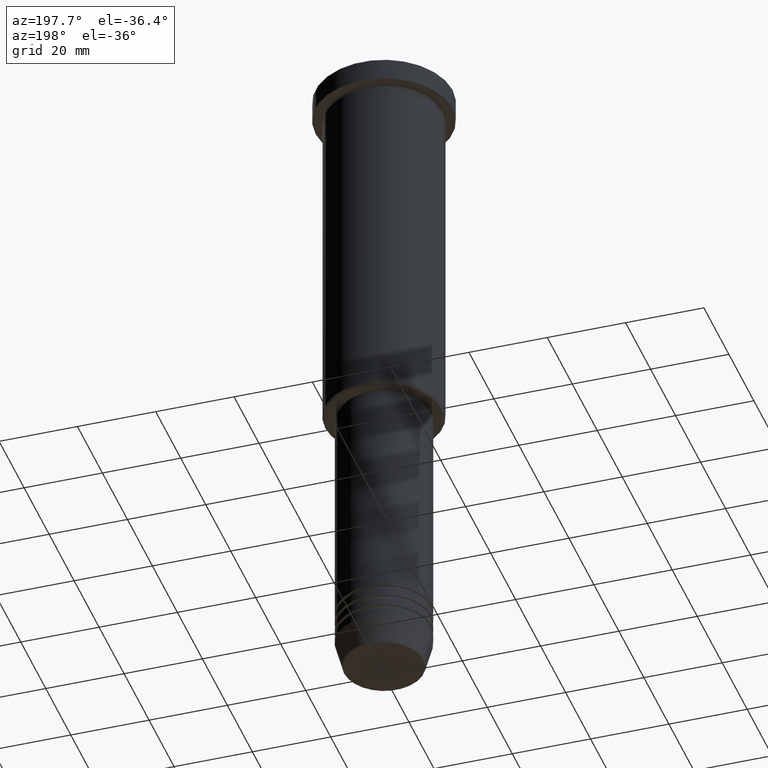
[diagram: clean part render]
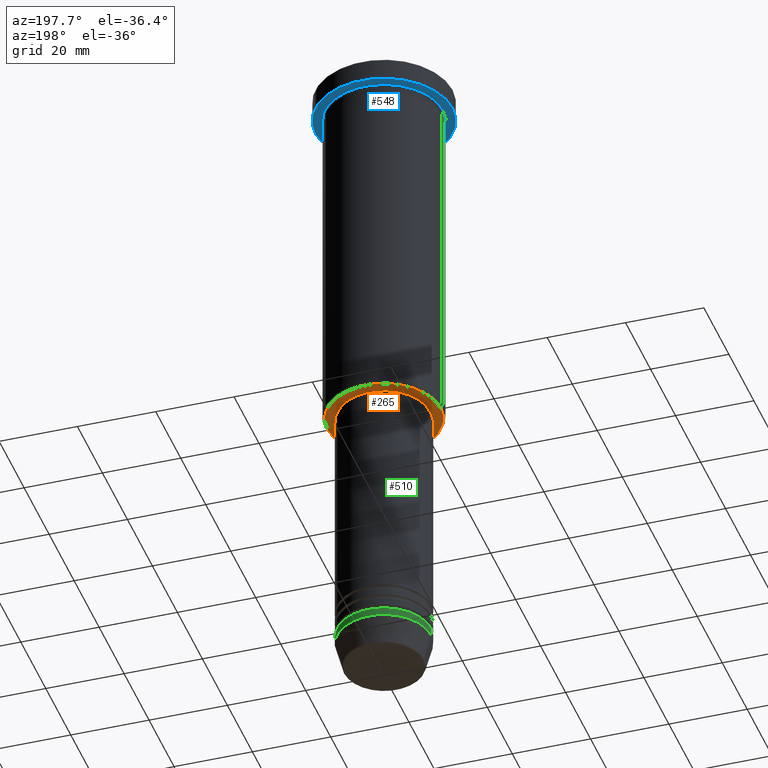
[diagram: same view with three faces highlighted in distinct colors, each labeled with its STEP entity id]
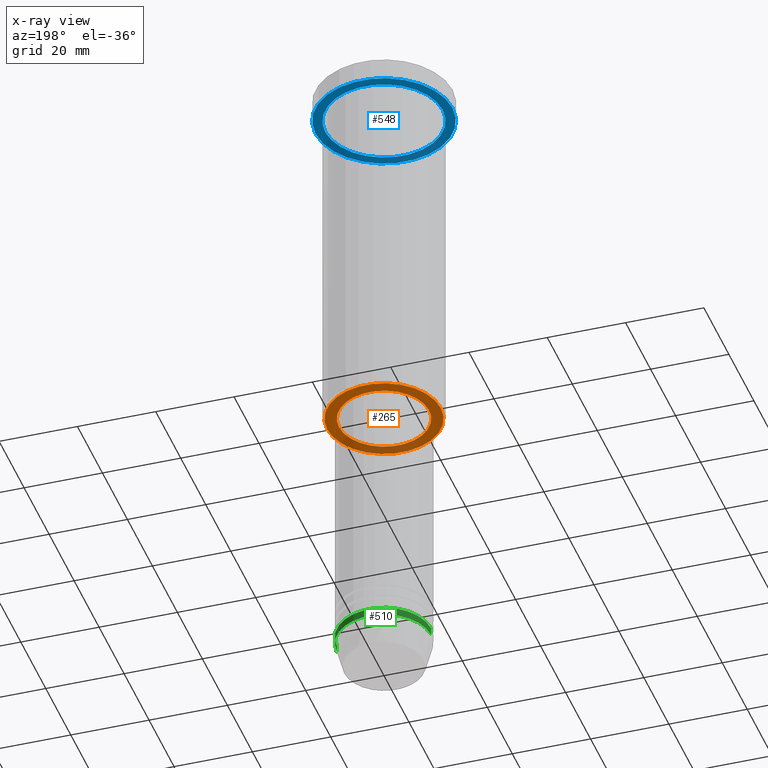
[diagram: x-ray of the same camera — body ghosted, the three highlighted faces saturated]
A machine part, auxiliary view with three faces highlighted in distinct colors.
The next image is the same camera in x-ray (body ghosted, the three faces saturated) — at least one of them is partly hidden behind the body in this view.
Their STEP definitions:

[orange] entity #265 — the highlighted planar face has unit normal (0, 0, -1).
#3 = DIRECTION ( 'NONE',  ( 1.000000000000000000, 0.000000000000000000, 0.000000000000000000 ) ) ;
#74 = EDGE_LOOP ( 'NONE', ( #803, #277 ) ) ;
#75 = DIRECTION ( 'NONE',  ( -1.000000000000000000, 0.000000000000000000, 0.000000000000000000 ) ) ;
#97 = CIRCLE ( 'NONE', #749, 14.50000000000001066 ) ;
#112 = DIRECTION ( 'NONE',  ( 1.000000000000000000, 0.000000000000000000, 0.000000000000000000 ) ) ;
#113 = CARTESIAN_POINT ( 'NONE',  ( 0.000000000000000000, 15.00000000000000000, -96.00000000000000000 ) ) ;
#129 = CARTESIAN_POINT ( 'NONE',  ( 14.50000000000001066, 0.000000000000000000, -96.00000000000000000 ) ) ;
#140 = DIRECTION ( 'NONE',  ( 0.000000000000000000, 0.000000000000000000, -1.000000000000000000 ) ) ;
#173 = AXIS2_PLACEMENT_3D ( 'NONE', #1008, #978, #3 ) ;
#175 = AXIS2_PLACEMENT_3D ( 'NONE', #1103, #629, #112 ) ;
#196 = CARTESIAN_POINT ( 'NONE',  ( -14.50000000000001066, 1.806354028742346591E-15, -96.00000000000000000 ) ) ;
#216 = FACE_OUTER_BOUND ( 'NONE', #74, .T. ) ;
#265 = ADVANCED_FACE ( 'NONE', ( #216, #1107 ), #476, .T. ) ;
#277 = ORIENTED_EDGE ( 'NONE', *, *, #1087, .T. ) ;
#303 = DIRECTION ( 'NONE',  ( -1.000000000000000000, 0.000000000000000000, -0.000000000000000000 ) ) ;
#317 = EDGE_CURVE ( 'NONE', #1032, #544, #883, .T. ) ;
#387 = DIRECTION ( 'NONE',  ( 0.000000000000000000, 0.000000000000000000, -1.000000000000000000 ) ) ;
#404 = EDGE_CURVE ( 'NONE', #544, #1032, #861, .T. ) ;
#434 = VERTEX_POINT ( 'NONE', #196 ) ;
#476 = PLANE ( 'NONE',  #540 ) ;
#507 = CARTESIAN_POINT ( 'NONE',  ( 0.000000000000000000, 0.000000000000000000, -96.00000000000000000 ) ) ;
#540 = AXIS2_PLACEMENT_3D ( 'NONE', #113, #387, #303 ) ;
#544 = VERTEX_POINT ( 'NONE', #990 ) ;
#573 = EDGE_CURVE ( 'NONE', #596, #434, #97, .T. ) ;
#581 = CARTESIAN_POINT ( 'NONE',  ( 0.000000000000000000, 0.000000000000000000, -96.00000000000000000 ) ) ;
#596 = VERTEX_POINT ( 'NONE', #129 ) ;
#608 = DIRECTION ( 'NONE',  ( 0.000000000000000000, 0.000000000000000000, -1.000000000000000000 ) ) ;
#629 = DIRECTION ( 'NONE',  ( -0.000000000000000000, -0.000000000000000000, 1.000000000000000000 ) ) ;
#649 = CARTESIAN_POINT ( 'NONE',  ( 11.50000000000000000, 0.000000000000000000, -96.00000000000000000 ) ) ;
#662 = DIRECTION ( 'NONE',  ( -1.000000000000000000, 0.000000000000000000, 0.000000000000000000 ) ) ;
#728 = ORIENTED_EDGE ( 'NONE', *, *, #317, .T. ) ;
#749 = AXIS2_PLACEMENT_3D ( 'NONE', #507, #608, #75 ) ;
#803 = ORIENTED_EDGE ( 'NONE', *, *, #573, .T. ) ;
#848 = AXIS2_PLACEMENT_3D ( 'NONE', #581, #140, #662 ) ;
#861 = CIRCLE ( 'NONE', #175, 11.50000000000000000 ) ;
#883 = CIRCLE ( 'NONE', #173, 11.50000000000000000 ) ;
#903 = EDGE_LOOP ( 'NONE', ( #728, #1154 ) ) ;
#978 = DIRECTION ( 'NONE',  ( -0.000000000000000000, -0.000000000000000000, 1.000000000000000000 ) ) ;
#990 = CARTESIAN_POINT ( 'NONE',  ( -11.50000000000000000, 1.408343819019456176E-15, -96.00000000000000000 ) ) ;
#1008 = CARTESIAN_POINT ( 'NONE',  ( 0.000000000000000000, 0.000000000000000000, -96.00000000000000000 ) ) ;
#1032 = VERTEX_POINT ( 'NONE', #649 ) ;
#1066 = CIRCLE ( 'NONE', #848, 14.50000000000001066 ) ;
#1087 = EDGE_CURVE ( 'NONE', #434, #596, #1066, .T. ) ;
#1103 = CARTESIAN_POINT ( 'NONE',  ( 0.000000000000000000, 0.000000000000000000, -96.00000000000000000 ) ) ;
#1107 = FACE_BOUND ( 'NONE', #903, .T. ) ;
#1154 = ORIENTED_EDGE ( 'NONE', *, *, #404, .T. ) ;

[blue] entity #548 — the highlighted planar face has unit normal (0, 0, -1).
#60 = CARTESIAN_POINT ( 'NONE',  ( 0.000000000000000000, 17.50000000000000000, -5.999999999999995559 ) ) ;
#65 = DIRECTION ( 'NONE',  ( -0.000000000000000000, -0.000000000000000000, 1.000000000000000000 ) ) ;
#68 = FACE_BOUND ( 'NONE', #526, .T. ) ;
#73 = CARTESIAN_POINT ( 'NONE',  ( -17.50000000000000000, 2.143131898507868248E-15, -5.999999999999995559 ) ) ;
#136 = CIRCLE ( 'NONE', #292, 15.00000000000000000 ) ;
#163 = EDGE_LOOP ( 'NONE', ( #816, #349 ) ) ;
#166 = CARTESIAN_POINT ( 'NONE',  ( -15.00000000000000000, 0.000000000000000000, -5.999999999999994671 ) ) ;
#181 = DIRECTION ( 'NONE',  ( -1.000000000000000000, 0.000000000000000000, 0.000000000000000000 ) ) ;
#247 = CIRCLE ( 'NONE', #1062, 15.00000000000000000 ) ;
#255 = CARTESIAN_POINT ( 'NONE',  ( 17.50000000000000000, 0.000000000000000000, -5.999999999999995559 ) ) ;
#264 = FACE_OUTER_BOUND ( 'NONE', #163, .T. ) ;
#292 = AXIS2_PLACEMENT_3D ( 'NONE', #1005, #448, #181 ) ;
#320 = AXIS2_PLACEMENT_3D ( 'NONE', #811, #994, #538 ) ;
#341 = ORIENTED_EDGE ( 'NONE', *, *, #579, .T. ) ;
#349 = ORIENTED_EDGE ( 'NONE', *, *, #709, .F. ) ;
#363 = CIRCLE ( 'NONE', #320, 17.50000000000000000 ) ;
#399 = EDGE_CURVE ( 'NONE', #687, #562, #363, .T. ) ;
#421 = DIRECTION ( 'NONE',  ( -1.000000000000000000, 0.000000000000000000, -0.000000000000000000 ) ) ;
#435 = CARTESIAN_POINT ( 'NONE',  ( 0.000000000000000000, 0.000000000000000000, -5.999999999999995559 ) ) ;
#448 = DIRECTION ( 'NONE',  ( -0.000000000000000000, -0.000000000000000000, 1.000000000000000000 ) ) ;
#505 = PLANE ( 'NONE',  #806 ) ;
#526 = EDGE_LOOP ( 'NONE', ( #917, #341 ) ) ;
#538 = DIRECTION ( 'NONE',  ( 1.000000000000000000, 0.000000000000000000, 0.000000000000000000 ) ) ;
#548 = ADVANCED_FACE ( 'NONE', ( #68, #264 ), #505, .T. ) ;
#562 = VERTEX_POINT ( 'NONE', #73 ) ;
#579 = EDGE_CURVE ( 'NONE', #812, #762, #247, .T. ) ;
#594 = DIRECTION ( 'NONE',  ( 0.000000000000000000, 0.000000000000000000, -1.000000000000000000 ) ) ;
#687 = VERTEX_POINT ( 'NONE', #255 ) ;
#701 = CARTESIAN_POINT ( 'NONE',  ( 0.000000000000000000, 0.000000000000000000, -5.999999999999995559 ) ) ;
#709 = EDGE_CURVE ( 'NONE', #562, #687, #789, .T. ) ;
#762 = VERTEX_POINT ( 'NONE', #166 ) ;
#789 = CIRCLE ( 'NONE', #1025, 17.50000000000000000 ) ;
#806 = AXIS2_PLACEMENT_3D ( 'NONE', #60, #594, #421 ) ;
#811 = CARTESIAN_POINT ( 'NONE',  ( 0.000000000000000000, 0.000000000000000000, -5.999999999999995559 ) ) ;
#812 = VERTEX_POINT ( 'NONE', #1099 ) ;
#813 = DIRECTION ( 'NONE',  ( -1.000000000000000000, 0.000000000000000000, 0.000000000000000000 ) ) ;
#816 = ORIENTED_EDGE ( 'NONE', *, *, #399, .F. ) ;
#821 = EDGE_CURVE ( 'NONE', #762, #812, #136, .T. ) ;
#906 = DIRECTION ( 'NONE',  ( -0.000000000000000000, -0.000000000000000000, 1.000000000000000000 ) ) ;
#917 = ORIENTED_EDGE ( 'NONE', *, *, #821, .T. ) ;
#994 = DIRECTION ( 'NONE',  ( -0.000000000000000000, -0.000000000000000000, 1.000000000000000000 ) ) ;
#1005 = CARTESIAN_POINT ( 'NONE',  ( 0.000000000000000000, 0.000000000000000000, -5.999999999999995559 ) ) ;
#1025 = AXIS2_PLACEMENT_3D ( 'NONE', #701, #65, #1165 ) ;
#1062 = AXIS2_PLACEMENT_3D ( 'NONE', #435, #906, #813 ) ;
#1099 = CARTESIAN_POINT ( 'NONE',  ( 15.00000000000000000, 1.836970198721029589E-15, -5.999999999999994671 ) ) ;
#1165 = DIRECTION ( 'NONE',  ( 1.000000000000000000, 0.000000000000000000, 0.000000000000000000 ) ) ;

[green] entity #510 — the highlighted cylindrical surface (partial cylindrical patch) has radius 12 mm, axis along (-0, -0, 1).
#11 = EDGE_CURVE ( 'NONE', #684, #85, #685, .T. ) ;
#42 = LINE ( 'NONE', #141, #563 ) ;
#61 = DIRECTION ( 'NONE',  ( -0.000000000000000000, -0.000000000000000000, 1.000000000000000000 ) ) ;
#85 = VERTEX_POINT ( 'NONE', #779 ) ;
#94 = CARTESIAN_POINT ( 'NONE',  ( 12.00000000000000000, 0.000000000000000000, 0.000000000000000000 ) ) ;
#110 = ORIENTED_EDGE ( 'NONE', *, *, #479, .T. ) ;
#125 = DIRECTION ( 'NONE',  ( -0.000000000000000000, -0.000000000000000000, 1.000000000000000000 ) ) ;
#141 = CARTESIAN_POINT ( 'NONE',  ( -12.00000000000000000, 1.469576158976823947E-15, 0.000000000000000000 ) ) ;
#195 = AXIS2_PLACEMENT_3D ( 'NONE', #327, #61, #584 ) ;
#211 = VERTEX_POINT ( 'NONE', #323 ) ;
#237 = ORIENTED_EDGE ( 'NONE', *, *, #804, .F. ) ;
#242 = CARTESIAN_POINT ( 'NONE',  ( -12.00000000000000000, 1.469576158976823947E-15, -162.0000000000000000 ) ) ;
#315 = CYLINDRICAL_SURFACE ( 'NONE', #195, 12.00000000000000000 ) ;
#323 = CARTESIAN_POINT ( 'NONE',  ( 12.00000000000000000, 0.000000000000000000, -162.0000000000000000 ) ) ;
#327 = CARTESIAN_POINT ( 'NONE',  ( 0.000000000000000000, 0.000000000000000000, 0.000000000000000000 ) ) ;
#380 = CIRCLE ( 'NONE', #1040, 12.00000000000000000 ) ;
#479 = EDGE_CURVE ( 'NONE', #85, #696, #42, .T. ) ;
#494 = DIRECTION ( 'NONE',  ( 1.000000000000000000, 0.000000000000000000, 0.000000000000000000 ) ) ;
#498 = VECTOR ( 'NONE', #1109, 1000.000000000000000 ) ;
#510 = ADVANCED_FACE ( 'NONE', ( #935 ), #315, .T. ) ;
#563 = VECTOR ( 'NONE', #656, 1000.000000000000000 ) ;
#584 = DIRECTION ( 'NONE',  ( 1.000000000000000000, 0.000000000000000000, 0.000000000000000000 ) ) ;
#642 = EDGE_CURVE ( 'NONE', #211, #696, #380, .T. ) ;
#656 = DIRECTION ( 'NONE',  ( -0.000000000000000000, -0.000000000000000000, 1.000000000000000000 ) ) ;
#684 = VERTEX_POINT ( 'NONE', #1070 ) ;
#685 = CIRCLE ( 'NONE', #844, 12.00000000000000000 ) ;
#696 = VERTEX_POINT ( 'NONE', #242 ) ;
#721 = CARTESIAN_POINT ( 'NONE',  ( 0.000000000000000000, 0.000000000000000000, -162.0000000000000000 ) ) ;
#779 = CARTESIAN_POINT ( 'NONE',  ( -12.00000000000000000, 1.469576158976823947E-15, -164.0000000000000000 ) ) ;
#804 = EDGE_CURVE ( 'NONE', #684, #211, #980, .T. ) ;
#844 = AXIS2_PLACEMENT_3D ( 'NONE', #926, #125, #494 ) ;
#895 = ORIENTED_EDGE ( 'NONE', *, *, #642, .F. ) ;
#926 = CARTESIAN_POINT ( 'NONE',  ( 0.000000000000000000, 0.000000000000000000, -164.0000000000000000 ) ) ;
#935 = FACE_OUTER_BOUND ( 'NONE', #1162, .T. ) ;
#980 = LINE ( 'NONE', #94, #498 ) ;
#1035 = DIRECTION ( 'NONE',  ( 1.000000000000000000, 0.000000000000000000, 0.000000000000000000 ) ) ;
#1040 = AXIS2_PLACEMENT_3D ( 'NONE', #721, #1133, #1035 ) ;
#1055 = ORIENTED_EDGE ( 'NONE', *, *, #11, .T. ) ;
#1070 = CARTESIAN_POINT ( 'NONE',  ( 12.00000000000000000, 0.000000000000000000, -164.0000000000000000 ) ) ;
#1109 = DIRECTION ( 'NONE',  ( -0.000000000000000000, -0.000000000000000000, 1.000000000000000000 ) ) ;
#1133 = DIRECTION ( 'NONE',  ( -0.000000000000000000, -0.000000000000000000, 1.000000000000000000 ) ) ;
#1162 = EDGE_LOOP ( 'NONE', ( #1055, #110, #895, #237 ) ) ;